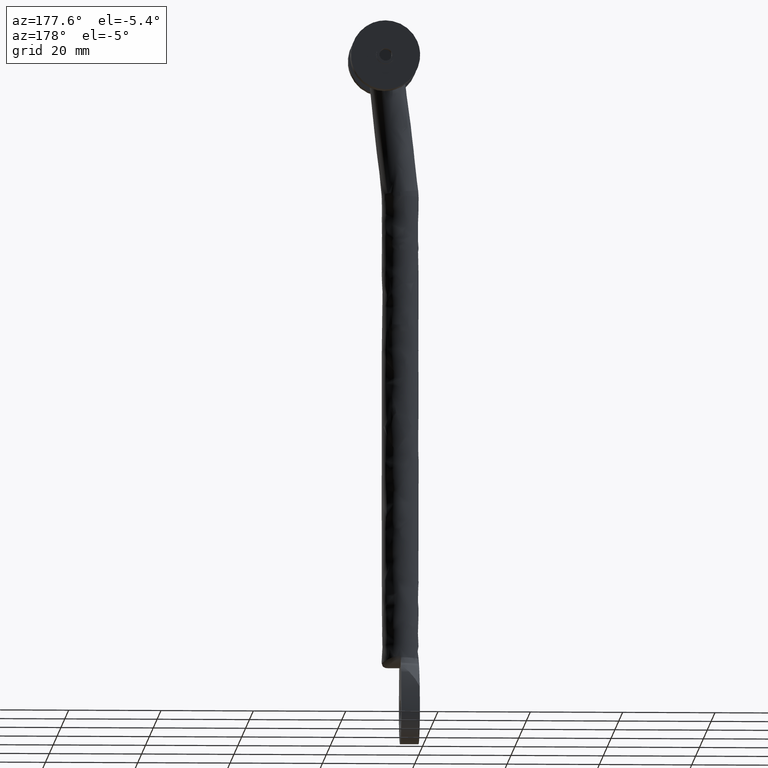
[diagram: clean part render]
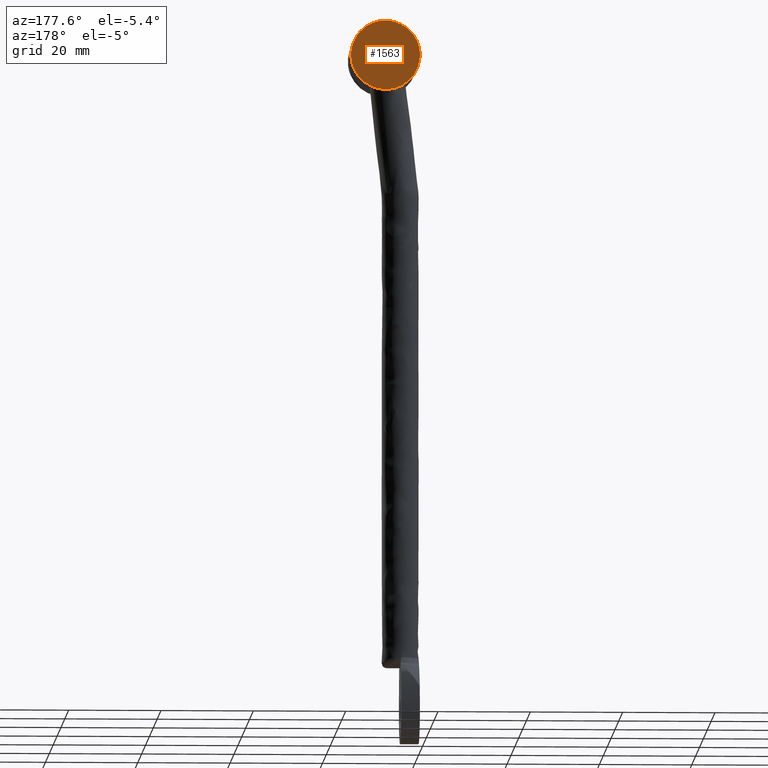
[diagram: same view with one face highlighted and labeled with its STEP entity id]
A machine part, auxiliary view. The second image highlights one B-rep face of the part: STEP entity #1563.
In plain terms, the highlighted face is a freeform B-spline surface patch.
Its self-contained STEP definition (entity closure, byte-faithful):
#286=CARTESIAN_POINT('',(5.503996029878602,8.000000379979579,142.690538421901100));
#287=VERTEX_POINT('',#286);
#293=CARTESIAN_POINT('',(7.500413774066689,8.000000379979579,144.568579864685490));
#294=VERTEX_POINT('',#293);
#295=CARTESIAN_POINT('',(7.500413774066689,8.000000379979579,144.568579864685490));
#296=CARTESIAN_POINT('',(5.618863650917310,8.000000379979579,144.568579864685570));
#297=CARTESIAN_POINT('',(5.503996029878602,8.000000379979579,142.690538421901150));
#305=(BOUNDED_CURVE()B_SPLINE_CURVE(2,(#295,#296,#297),.UNSPECIFIED.,.F.,.U.)B_SPLINE_CURVE_WITH_KNOTS((3,3),(0.500000000000000,0.739332807948800),.UNSPECIFIED.)CURVE()GEOMETRIC_REPRESENTATION_ITEM()RATIONAL_B_SPLINE_CURVE((1.0,0.719604174048856,0.976071710993794))REPRESENTATION_ITEM(''));
#306=EDGE_CURVE('',#294,#287,#305,.T.);
#308=CARTESIAN_POINT('',(9.486580267670908,8.000000379979579,142.332345390330690));
#309=VERTEX_POINT('',#308);
#310=CARTESIAN_POINT('',(9.486580267670908,8.000000379979579,142.332345390330660));
#311=CARTESIAN_POINT('',(9.500562252948800,8.000000379979579,142.449974352394520));
#312=CARTESIAN_POINT('',(9.500562252948800,8.000000379979579,142.568431385803390));
#313=CARTESIAN_POINT('',(9.500562252948800,8.000000379979579,144.568579864685520));
#314=CARTESIAN_POINT('',(7.500413774066689,8.000000379979579,144.568579864685490));
#322=(BOUNDED_CURVE()B_SPLINE_CURVE(2,(#310,#311,#312,#313,#314),.UNSPECIFIED.,.F.,.U.)B_SPLINE_CURVE_WITH_KNOTS((3,2,3),(0.229562473418984,0.250000000000000,0.500000000000000),.UNSPECIFIED.)CURVE()GEOMETRIC_REPRESENTATION_ITEM()RATIONAL_B_SPLINE_CURVE((0.956026753998428,0.976055948220403,1.0,0.707106781186547,1.0))REPRESENTATION_ITEM(''));
#323=EDGE_CURVE('',#309,#294,#322,.T.);
#367=CARTESIAN_POINT('',(7.500413774066689,8.000000379979579,140.568282906921300));
#368=VERTEX_POINT('',#367);
#369=CARTESIAN_POINT('',(7.500413774066689,8.000000379979579,140.568282906921300));
#370=CARTESIAN_POINT('',(9.276894700106956,8.000000379979579,140.568282906921300));
#371=CARTESIAN_POINT('',(9.486580267670908,8.000000379979579,142.332345390330690));
#379=(BOUNDED_CURVE()B_SPLINE_CURVE(2,(#369,#370,#371),.UNSPECIFIED.,.F.,.U.)B_SPLINE_CURVE_WITH_KNOTS((3,3),(0.0,0.229562473418984),.UNSPECIFIED.)CURVE()GEOMETRIC_REPRESENTATION_ITEM()RATIONAL_B_SPLINE_CURVE((1.0,0.731050832966145,0.956026753998428))REPRESENTATION_ITEM(''));
#380=EDGE_CURVE('',#368,#309,#379,.T.);
#382=CARTESIAN_POINT('',(5.503996029878602,8.000000379979579,142.690538421901150));
#383=CARTESIAN_POINT('',(5.500265295184580,8.000000379979579,142.629542343952610));
#384=CARTESIAN_POINT('',(5.500265295184579,8.000000379979579,142.568431385803390));
#385=CARTESIAN_POINT('',(5.500265295184580,8.000000379979579,140.568282906921270));
#386=CARTESIAN_POINT('',(7.500413774066689,8.000000379979579,140.568282906921300));
#394=(BOUNDED_CURVE()B_SPLINE_CURVE(2,(#382,#383,#384,#385,#386),.UNSPECIFIED.,.F.,.U.)B_SPLINE_CURVE_WITH_KNOTS((3,2,3),(0.739332807948800,0.750000000000000,1.0),.UNSPECIFIED.)CURVE()GEOMETRIC_REPRESENTATION_ITEM()RATIONAL_B_SPLINE_CURVE((0.976071710993794,0.987502607137691,1.0,0.707106781186547,1.0))REPRESENTATION_ITEM(''));
#395=EDGE_CURVE('',#287,#368,#394,.T.);
#438=CARTESIAN_POINT('',(14.948132922138850,8.000000379979579,141.683157069371300));
#439=VERTEX_POINT('',#438);
#440=CARTESIAN_POINT('',(7.500413774066689,8.000000379979579,150.068580125921500));
#441=VERTEX_POINT('',#440);
#442=CARTESIAN_POINT('',(14.948132922138848,8.000000379979579,141.683157069371280));
#443=CARTESIAN_POINT('',(15.000562514184786,8.000000379979579,142.124241679330310));
#444=CARTESIAN_POINT('',(15.000562514184780,8.000000379979579,142.568431385803390));
#445=CARTESIAN_POINT('',(15.000562514184788,8.000000379979579,150.068580125921410));
#446=CARTESIAN_POINT('',(7.500413774066689,8.000000379979579,150.068580125921500));
#454=(BOUNDED_CURVE()B_SPLINE_CURVE(2,(#442,#443,#444,#445,#446),.UNSPECIFIED.,.F.,.U.)B_SPLINE_CURVE_WITH_KNOTS((3,2,3),(0.229562473511995,0.250000000000000,0.500000000000000),.UNSPECIFIED.)CURVE()GEOMETRIC_REPRESENTATION_ITEM()RATIONAL_B_SPLINE_CURVE((0.956026754180733,0.976055948329372,1.0,0.707106781186548,1.0))REPRESENTATION_ITEM(''));
#455=EDGE_CURVE('',#439,#441,#454,.T.);
#457=CARTESIAN_POINT('',(0.014254323228284,8.000000379979579,143.026304512900710));
#458=VERTEX_POINT('',#457);
#459=CARTESIAN_POINT('',(7.500413774066689,8.000000379979579,150.068580125921500));
#460=CARTESIAN_POINT('',(0.444978351955703,8.000000379979577,150.068580125921500));
#461=CARTESIAN_POINT('',(0.014254323228284,8.000000379979579,143.026304512900680));
#469=(BOUNDED_CURVE()B_SPLINE_CURVE(2,(#459,#460,#461),.UNSPECIFIED.,.F.,.U.)B_SPLINE_CURVE_WITH_KNOTS((3,3),(0.500000000000000,0.739332962231882),.UNSPECIFIED.)CURVE()GEOMETRIC_REPRESENTATION_ITEM()RATIONAL_B_SPLINE_CURVE((1.0,0.719603993294983,0.976072041651584))REPRESENTATION_ITEM(''));
#470=EDGE_CURVE('',#441,#458,#469,.T.);
#537=CARTESIAN_POINT('',(7.500413774066689,8.000000379979579,135.068282645685290));
#538=VERTEX_POINT('',#537);
#539=CARTESIAN_POINT('',(7.500413774066689,8.000000379979579,135.068282645685290));
#540=CARTESIAN_POINT('',(14.161854825740974,8.000000379979577,135.068282645685290));
#541=CARTESIAN_POINT('',(14.948132922138848,8.000000379979579,141.683157069371280));
#549=(BOUNDED_CURVE()B_SPLINE_CURVE(2,(#539,#540,#541),.UNSPECIFIED.,.F.,.U.)B_SPLINE_CURVE_WITH_KNOTS((3,3),(0.0,0.229562473511995),.UNSPECIFIED.)CURVE()GEOMETRIC_REPRESENTATION_ITEM()RATIONAL_B_SPLINE_CURVE((1.0,0.731050832857176,0.956026754180733))REPRESENTATION_ITEM(''));
#550=EDGE_CURVE('',#538,#439,#549,.T.);
#584=CARTESIAN_POINT('',(0.014254323228284,8.000000379979579,143.026304512900650));
#585=CARTESIAN_POINT('',(0.000265033948598,8.000000379979580,142.797581655183880));
#586=CARTESIAN_POINT('',(0.000265033948598,8.000000379979579,142.568431385803390));
#587=CARTESIAN_POINT('',(0.000265033948598,8.000000379979579,135.068282645685290));
#588=CARTESIAN_POINT('',(7.500413774066689,8.000000379979579,135.068282645685290));
#596=(BOUNDED_CURVE()B_SPLINE_CURVE(2,(#584,#585,#586,#587,#588),.UNSPECIFIED.,.F.,.U.)B_SPLINE_CURVE_WITH_KNOTS((3,2,3),(0.739332962231881,0.750000000000000,1.0),.UNSPECIFIED.)CURVE()GEOMETRIC_REPRESENTATION_ITEM()RATIONAL_B_SPLINE_CURVE((0.976072041651583,0.987502787891564,1.0,0.707106781186548,1.0))REPRESENTATION_ITEM(''));
#597=EDGE_CURVE('',#458,#538,#596,.T.);
#1546=CARTESIAN_POINT('',(-0.748817389973738,8.000000379979579,134.319018613198410));
#1547=CARTESIAN_POINT('',(-0.748817389973738,8.000000379979579,150.817837452752910));
#1548=CARTESIAN_POINT('',(15.749690938903990,8.000000379979579,134.319018613198410));
#1549=CARTESIAN_POINT('',(15.749690938903990,8.000000379979579,150.817837452752910));
#1550=B_SPLINE_SURFACE_WITH_KNOTS('',1,1,((#1546,#1548),(#1547,#1549)),.UNSPECIFIED.,.F.,.F.,.U.,(2,2),(2,2),(0.0,16.498818839554531),(0.0,16.498508328877730),.UNSPECIFIED.);
#1551=ORIENTED_EDGE('',*,*,#597,.F.);
#1552=ORIENTED_EDGE('',*,*,#470,.F.);
#1553=ORIENTED_EDGE('',*,*,#455,.F.);
#1554=ORIENTED_EDGE('',*,*,#550,.F.);
#1555=EDGE_LOOP('',(#1551,#1552,#1553,#1554));
#1556=FACE_OUTER_BOUND('',#1555,.T.);
#1557=ORIENTED_EDGE('',*,*,#306,.T.);
#1558=ORIENTED_EDGE('',*,*,#395,.T.);
#1559=ORIENTED_EDGE('',*,*,#380,.T.);
#1560=ORIENTED_EDGE('',*,*,#323,.T.);
#1561=EDGE_LOOP('',(#1557,#1558,#1559,#1560));
#1562=FACE_BOUND('',#1561,.T.);
#1563=ADVANCED_FACE('',(#1556,#1562),#1550,.T.);